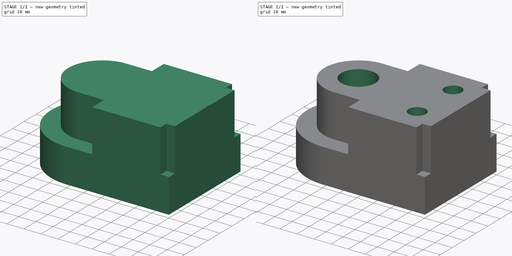
[diagram: build sequence overview — one tinted view per stage of 2, left to right]
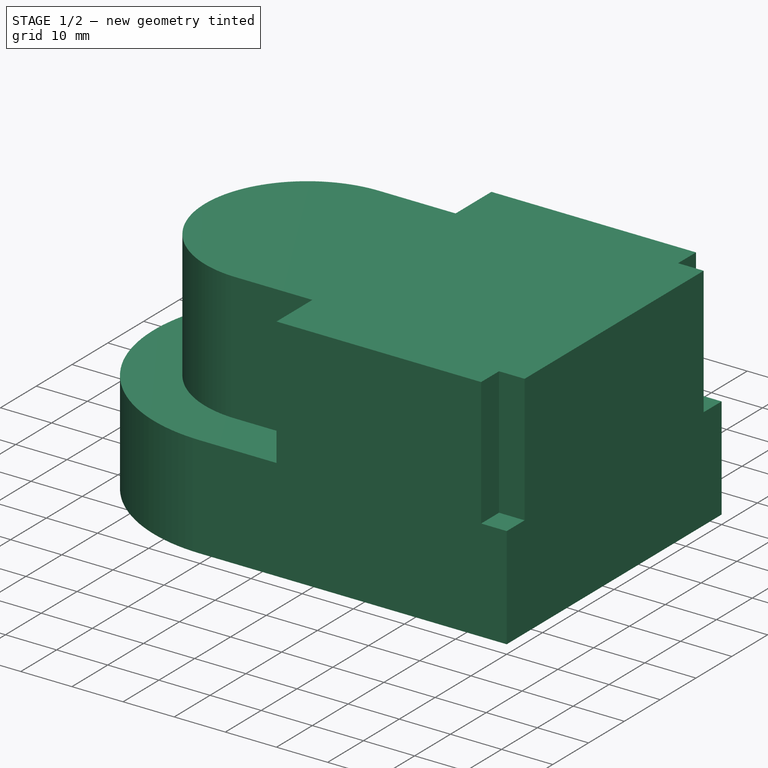
[diagram: stage 1 of 2 — iso view after this stage's code; geometry added in this stage tinted green]
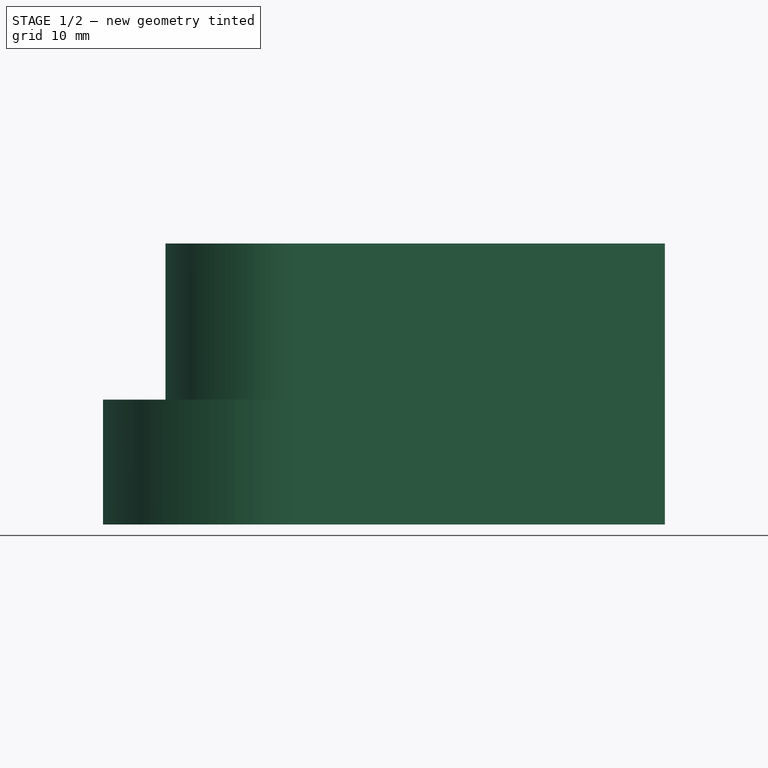
[diagram: stage 1 of 2 — front view after this stage's code; geometry added in this stage tinted green]
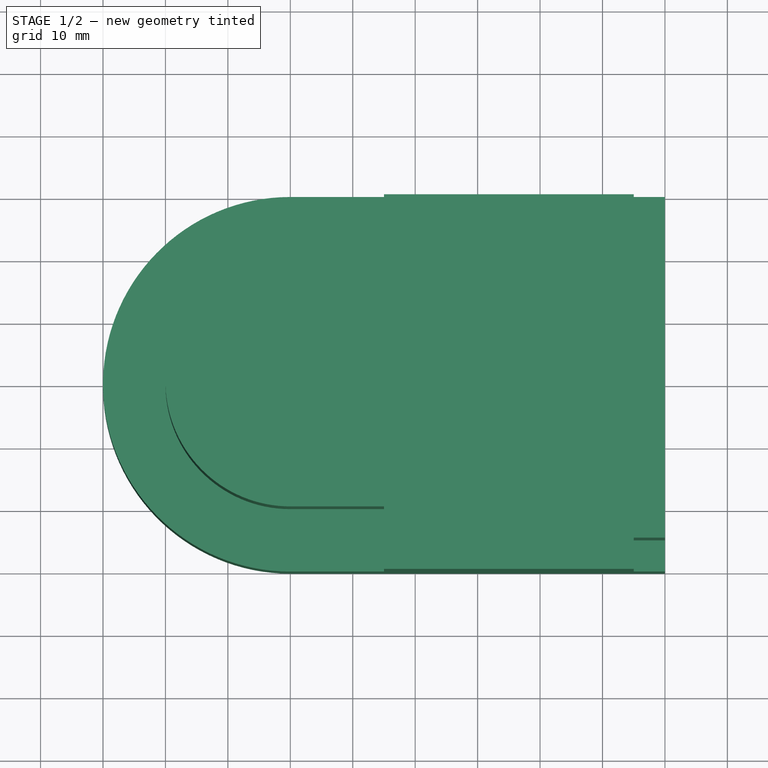
[diagram: stage 1 of 2 — top view after this stage's code; geometry added in this stage tinted green]
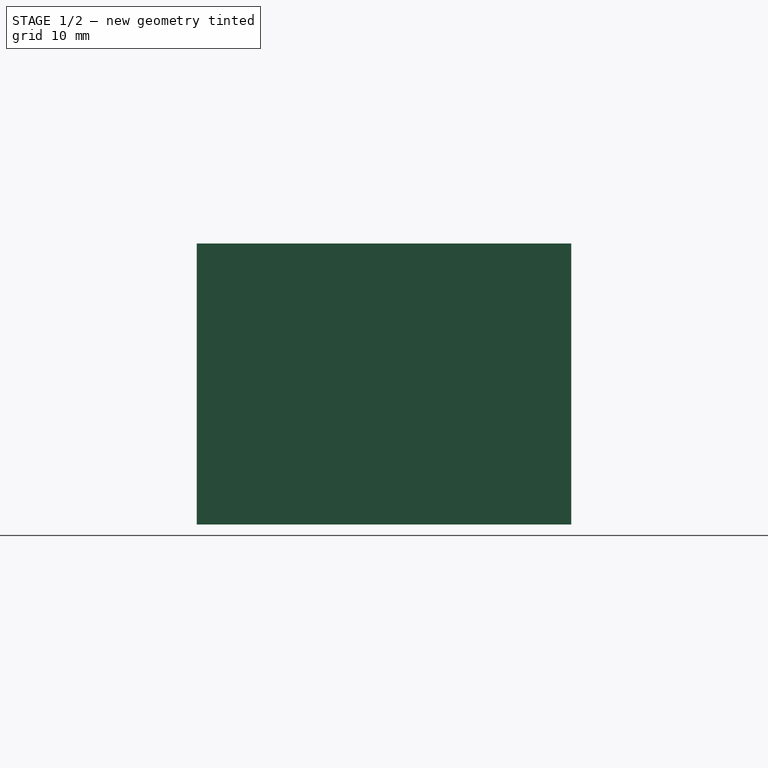
[diagram: stage 1 of 2 — right view after this stage's code; geometry added in this stage tinted green]
FCSTD DOCUMENT  (FreeCAD 0.18R4 (GitTag))
Label: Object9
License: All rights reserved
LicenseURL: http://en.wikipedia.org/wiki/All_rights_reserved
objects: Sketcher::SketchObject×3, PartDesign::Pocket×2, PartDesign::Pad×1, PartDesign::Body×1
note: 10 computed .brp shape members not serialized (recipe doc carries the construction recipe); baked Part::Feature solids carry a one-line shape summary decoded from their .brp

FEATURE [Sketcher::SketchObject] Sketch
  MapMode = 5
  Support = -> [XY_Plane]
  sketch-geometry (4):
    g0: ArcOfCircle CenterX=-5.5e-15 CenterY=0 CenterZ=0 NormalX=0 NormalY=0 NormalZ=1 AngleXU=0 Radius=30 StartAngle=1.5708 EndAngle=4.71239
    g1: LineSegment StartX=-5.5e-15 StartY=30 StartZ=0 EndX=60 EndY=30 EndZ=0
    g2: LineSegment StartX=60 StartY=30 StartZ=0 EndX=60 EndY=-30 EndZ=0
    g3: LineSegment StartX=60 StartY=-30 StartZ=0 EndX=-7.1e-15 EndY=-30 EndZ=0
  constraints (11):
    c: Vertical(g0,g0)
    c: Vertical(g0,g0)
    c: Coincident(g0,g-1)
    c: Radius(g0) = 30
    c: Horizontal(g1)
    c: Coincident(g1,g2)
    c: Coincident(g2,g3)
    c: Symmetric(g2,g1,g-1)
    c: Coincident(g1,g0)
    c: Coincident(g3,g0)
    c: DistanceX(g3,g3) = 60
FEATURE [PartDesign::Pad] Pad
  Length = 45
  Length2 = 100
  Profile = -> Sketch
  Type = 0
FEATURE [Sketcher::SketchObject] Sketch001
  MapMode = 5
  Placement = pos=(0,0,45) rot=(0,0,1;0rad)
  Support = -> [Pad]
  sketch-geometry (16):
    g0: ArcOfCircle CenterX=-2.45e-14 CenterY=0 CenterZ=0 NormalX=0 NormalY=0 NormalZ=1 AngleXU=0 Radius=20 StartAngle=1.5708 EndAngle=4.71239
    g1: ArcOfCircle CenterX=-2.45e-14 CenterY=0 CenterZ=0 NormalX=0 NormalY=0 NormalZ=1 AngleXU=0 Radius=30 StartAngle=1.5708 EndAngle=4.71239
    g2: LineSegment StartX=-2.45e-14 StartY=30 StartZ=0 EndX=15 EndY=30 EndZ=0
    g3: LineSegment StartX=15 StartY=30 StartZ=0 EndX=15 EndY=20 EndZ=0
    g4: LineSegment StartX=15 StartY=20 StartZ=0 EndX=0 EndY=20 EndZ=0
    g5: LineSegment StartX=-2.45e-14 StartY=-20 StartZ=0 EndX=15 EndY=-20 EndZ=0
    g6: LineSegment StartX=15 StartY=-20 StartZ=0 EndX=15 EndY=-30 EndZ=0
    g7: LineSegment StartX=15 StartY=-30 StartZ=0 EndX=0 EndY=-30 EndZ=0
    g8: LineSegment StartX=55 StartY=30 StartZ=0 EndX=60 EndY=30 EndZ=0
    g9: LineSegment StartX=60 StartY=30 StartZ=0 EndX=60 EndY=25 EndZ=0
    g10: LineSegment StartX=60 StartY=25 StartZ=0 EndX=55 EndY=25 EndZ=0
    g11: LineSegment StartX=55 StartY=25 StartZ=0 EndX=55 EndY=30 EndZ=0
    g12: LineSegment StartX=55 StartY=-25 StartZ=0 EndX=60 EndY=-25 EndZ=0
    g13: LineSegment StartX=60 StartY=-25 StartZ=0 EndX=60 EndY=-30 EndZ=0
    g14: LineSegment StartX=60 StartY=-30 StartZ=0 EndX=55 EndY=-30 EndZ=0
    g15: LineSegment StartX=55 StartY=-30 StartZ=0 EndX=55 EndY=-25 EndZ=0
  constraints (50):
    c: Radius(g1) = 30
    c: Radius(g0) = 20
    c: Vertical(g0,g0)
    c: Vertical(g0,g0)
    c: Vertical(g1,g1)
    c: Vertical(g1,g1)
    c: Coincident(g1,g0)
    c: Coincident(g-1,g0)
    c: Horizontal(g2)
    c: Coincident(g2,g3)
    c: Vertical(g3)
    c: Coincident(g3,g4)
    c: Horizontal(g4)
    c: DistanceX(g2,g2) = 15
    c: DistanceY(g3,g3) = 10
    c: Equal(g2,g4)
    c: Coincident(g2,g1)
    c: Horizontal(g5)
    c: Coincident(g5,g6)
    c: Vertical(g6)
    c: Coincident(g6,g7)
    c: Horizontal(g7)
    c: DistanceX(g5,g5) = 15
    c: DistanceY(g6,g6) = 10
    c: Equal(g5,g7)
    c: Coincident(g5,g0)
    c: Coincident(g8,g9)
    c: Coincident(g9,g10)
    c: Coincident(g10,g11)
    c: Coincident(g11,g8)
    c: Horizontal(g8)
    c: Horizontal(g10)
    c: Vertical(g9)
    c: Vertical(g11)
    c: DistanceX(g10,g10) = 5
    c: Equal(g9,g10)
    c: DistanceY(g-1,g8) = 30
    c: DistanceX(g-1,g9) = 60
    c: Coincident(g12,g13)
    c: Coincident(g13,g14)
    c: Coincident(g14,g15)
    c: Coincident(g15,g12)
    c: Horizontal(g12)
    c: Horizontal(g14)
    c: Vertical(g13)
    c: Vertical(g15)
    c: DistanceX(g14,g14) = 5
    c: Equal(g14,g13)
    c: DistanceY(g13,g-1) = 30
    c: DistanceX(g-1,g12) = 55
FEATURE [PartDesign::Pocket] Pocket
  BaseFeature = -> Pad
  Length = 25
  Length2 = 100
  Profile = -> Sketch001
  Type = 0
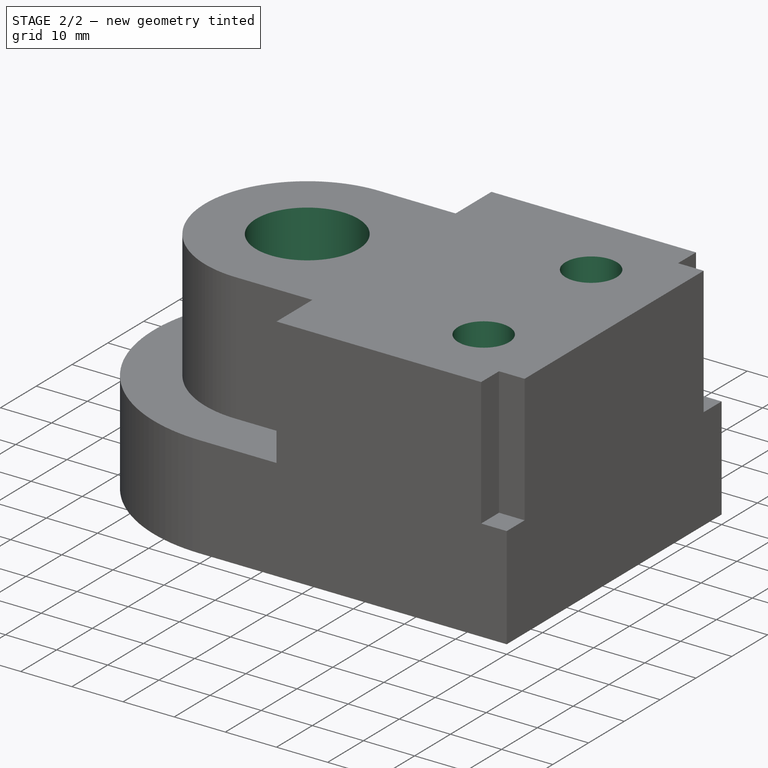
[diagram: stage 2 of 2 — iso view after this stage's code; geometry added in this stage tinted green]
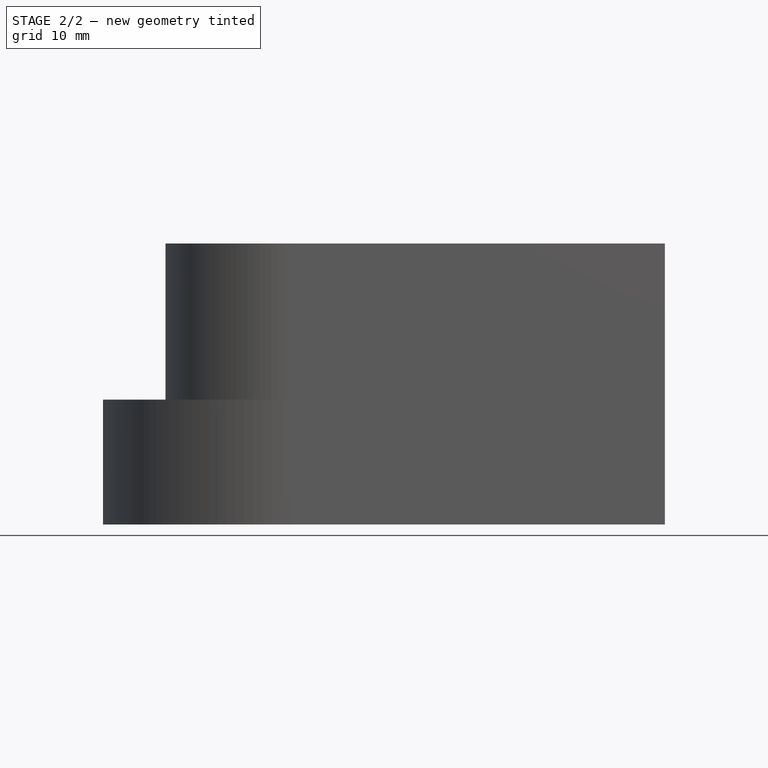
[diagram: stage 2 of 2 — front view after this stage's code; geometry added in this stage tinted green]
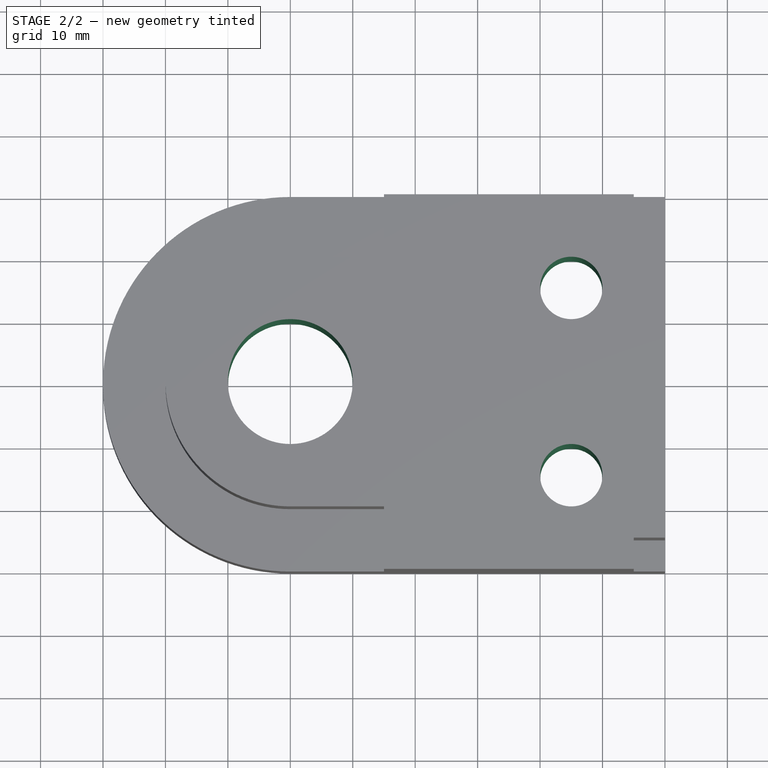
[diagram: stage 2 of 2 — top view after this stage's code; geometry added in this stage tinted green]
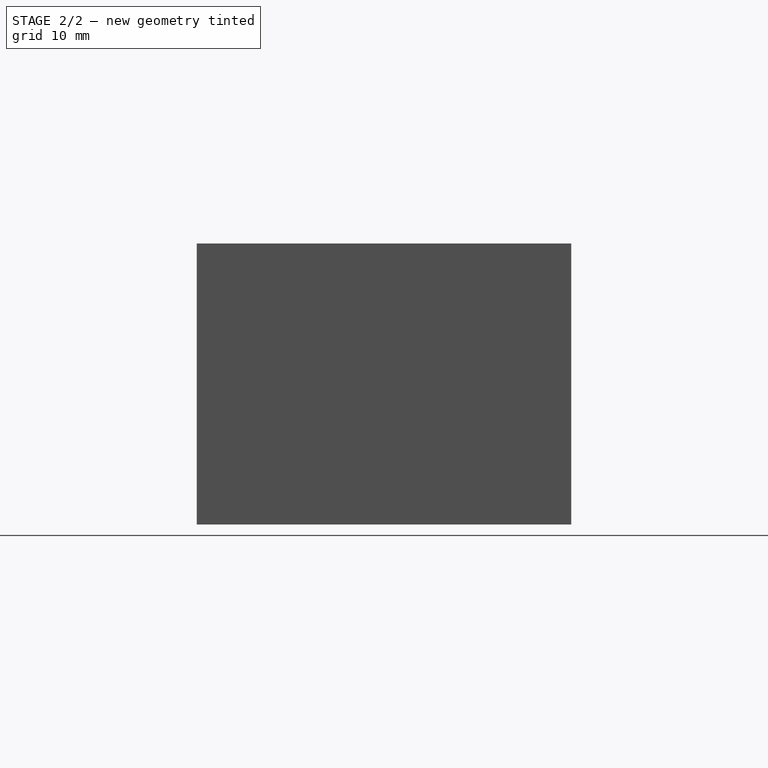
[diagram: stage 2 of 2 — right view after this stage's code; geometry added in this stage tinted green]
FEATURE [Sketcher::SketchObject] Sketch002
  MapMode = 5
  Placement = pos=(0,0,45) rot=(0,0,1;0rad)
  Support = -> [Pocket]
  sketch-geometry (3):
    g0: Circle CenterX=0 CenterY=0 CenterZ=0 NormalX=0 NormalY=0 NormalZ=1 AngleXU=0 Radius=10
    g1: Circle CenterX=45 CenterY=15 CenterZ=0 NormalX=0 NormalY=0 NormalZ=1 AngleXU=0 Radius=5
    g2: Circle CenterX=45 CenterY=-15 CenterZ=0 NormalX=0 NormalY=0 NormalZ=1 AngleXU=0 Radius=5
  constraints (7):
    c: Radius(g0) = 10
    c: Coincident(g0,g-1)
    c: Symmetric(g2,g1,g-1)
    c: DistanceY(g2,g-1) = 15
    c: DistanceX(g-1,g1) = 45
    c: Radius(g1) = 5
    c: Equal(g1,g2)
FEATURE [PartDesign::Pocket] Pocket001
  BaseFeature = -> Pocket
  Length = 5
  Length2 = 100
  Profile = -> Sketch002
  Type = 1
FEATURE [PartDesign::Body] Body
  Group = -> [Sketch,Pad,Sketch001,Pocket,Sketch002,Pocket001]
  Origin = -> Origin
  Tip = -> Pocket001
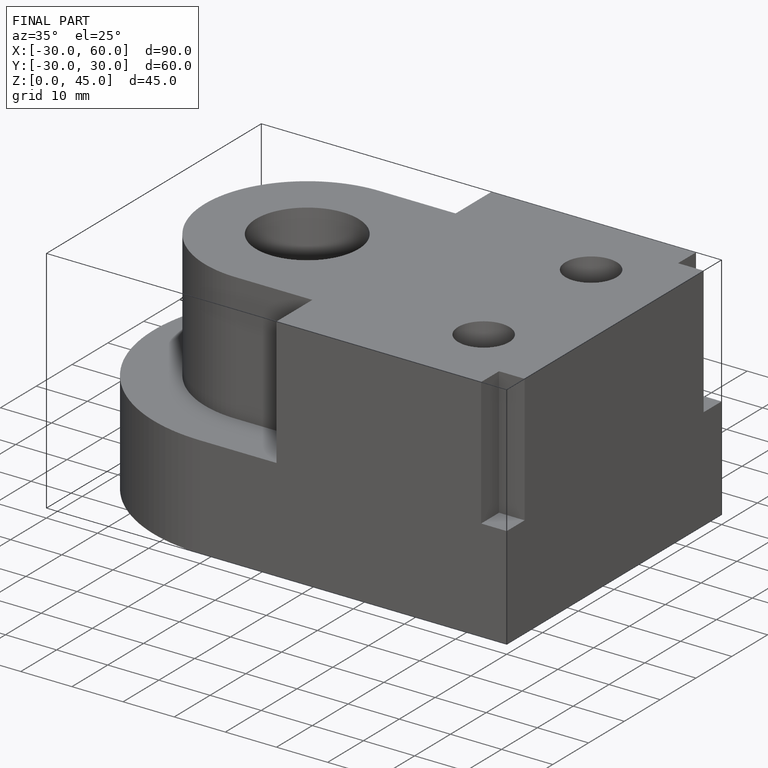
[diagram: finished part — iso view with bounding-box wireframe]
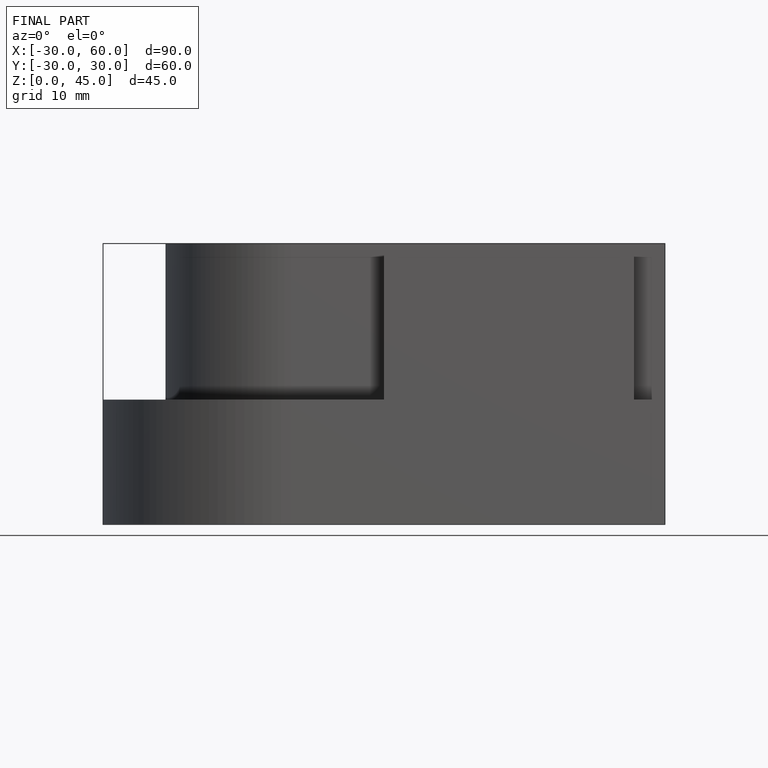
[diagram: finished part — front view with bounding-box wireframe]
